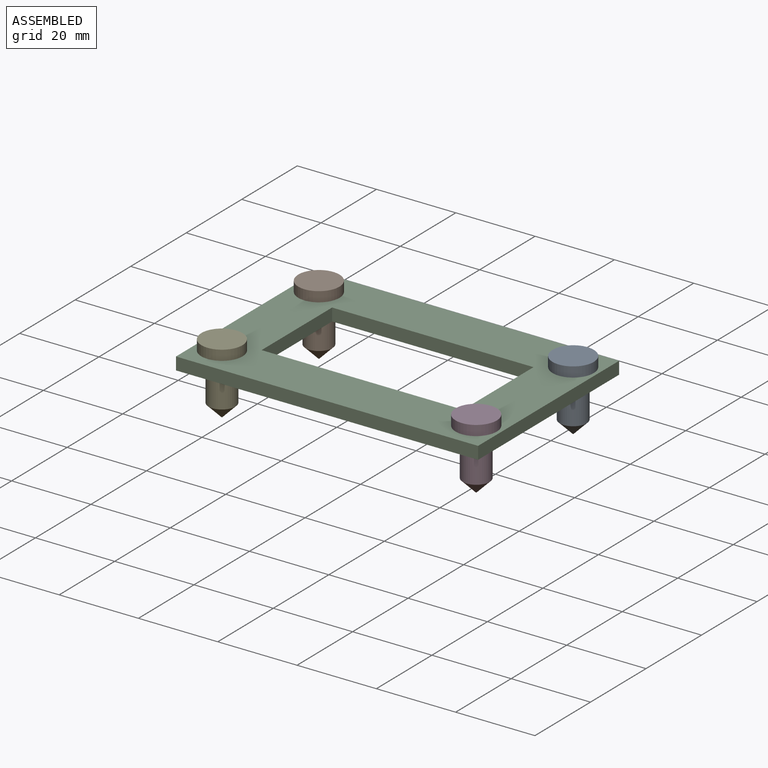
[diagram: assembled view]
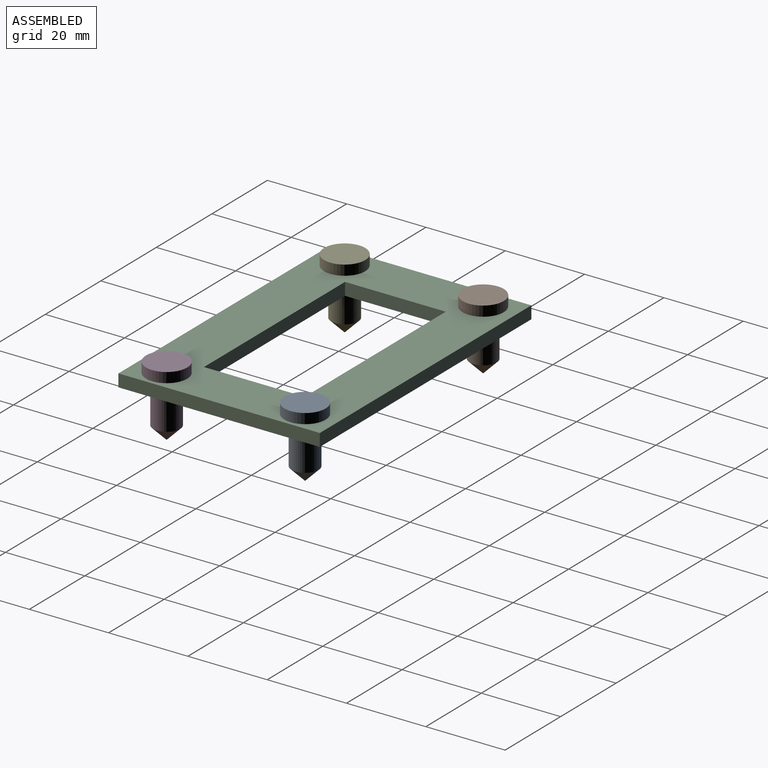
[diagram: assembled view, second angle]
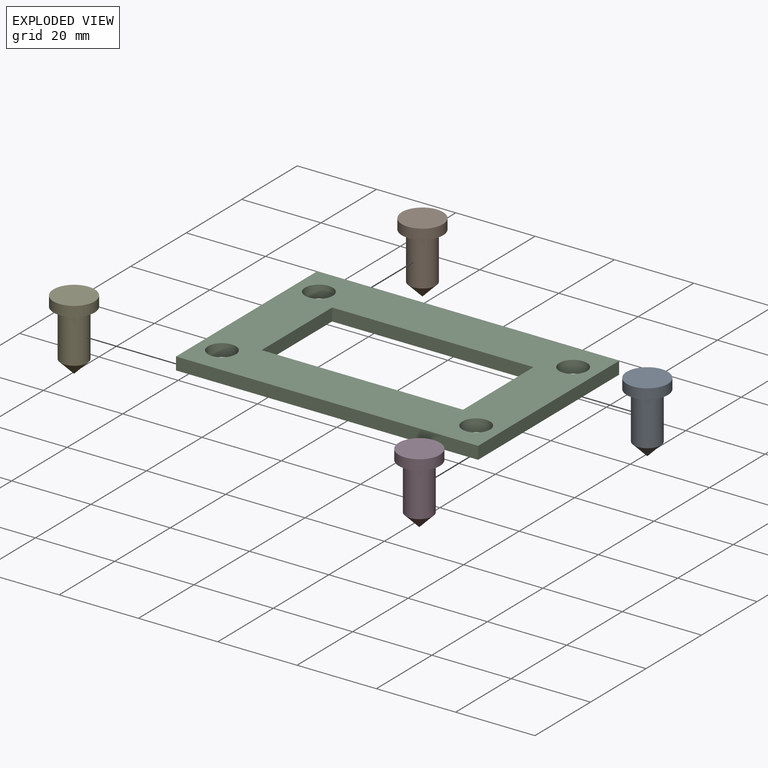
[diagram: exploded view]
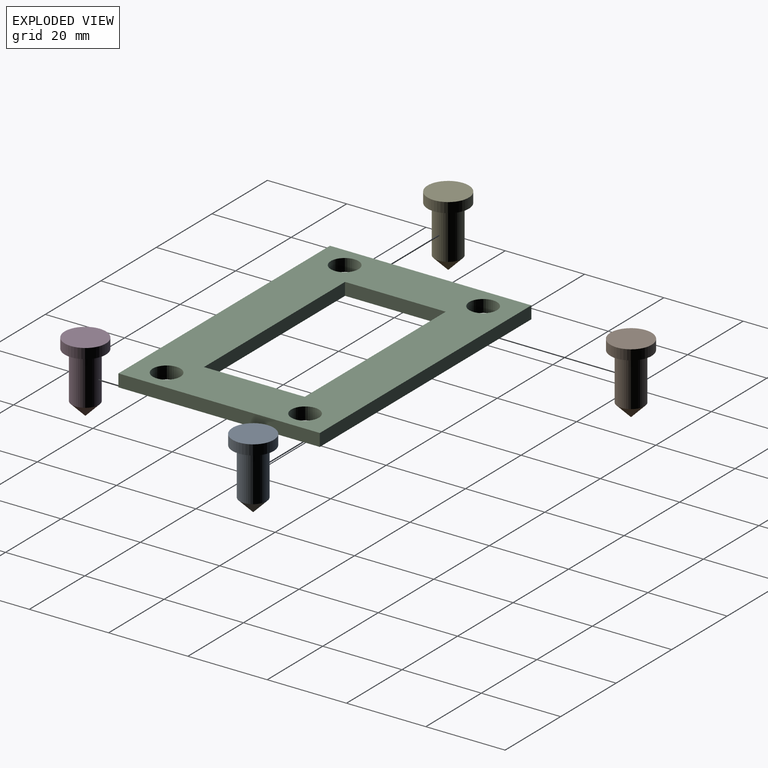
[diagram: exploded view, second angle]
ASSEMBLY  parts=5 mates=4
PART A: 6 faces, bbox 10.4x10.4x17.8 mm
  f0: cylinder r=3.4mm len=11.94mm, axis (0,0,1), area 254.7mm2, adj f4,f5
  f1: plane 0.19x0.19mm, normal (0,0,-1), area 0mm2, adj f5
  f2: cylinder r=5.19mm len=10.38mm, axis (0,0,-1), area 82.8mm2, adj f3,f4
  f3: plane 10.38x10.38mm, normal (0,0,1), area 84.6mm2, adj f2
  f4: plane 10.38x10.38mm, normal (0,0,-1), area 48.3mm2, adj f0,f2
  f5: cone r=3.4mm half-angle=45deg, axis (0,0,1), area 51.2mm2, adj f0,f1
PART B: same geometry as A
PART C: 14 faces, bbox 76.2x50.8x3.2 mm
  f0: plane 76.2x50.8mm, normal (0,0,1), area 2427.4mm2, adj f2,f3,f4,f5,f6,f7,f8,f9
  f1: plane 76.2x50.8mm, normal (0,0,-1), area 2427.4mm2, adj f2,f3,f4,f5,f6,f7,f8,f9
  f2: plane 50.8x3.18mm, normal (-1,0,0), area 161.3mm2, adj f0,f1,f3,f9
  f3: plane 76.2x3.18mm, normal (0,-1,0), area 241.9mm2, adj f0,f1,f2,f4
  f4: plane 50.8x3.18mm, normal (1,0,0), area 161.3mm2, adj f0,f1,f3,f9
  f5: plane 25.4x3.18mm, normal (-1,0,0), area 80.6mm2, adj f0,f1,f6,f8
  f6: plane 50.8x3.18mm, normal (0,1,0), area 161.3mm2, adj f0,f1,f5,f7
  f7: plane 25.4x3.18mm, normal (1,0,0), area 80.6mm2, adj f0,f1,f6,f8
  f8: plane 50.8x3.18mm, normal (0,-1,0), area 161.3mm2, adj f0,f1,f5,f7
  f9: plane 76.2x3.18mm, normal (0,1,0), area 241.9mm2, adj f0,f1,f2,f4
  f10: cylinder r=3.49mm len=6.99mm, axis (0,0,1), area 69.7mm2, adj f0,f1
  f11: cylinder r=3.49mm len=6.99mm, axis (0,0,1), area 69.7mm2, adj f0,f1
  f12: cylinder r=3.49mm len=6.99mm, axis (0,0,1), area 69.7mm2, adj f0,f1
  f13: cylinder r=3.49mm len=6.99mm, axis (0,0,1), area 69.7mm2, adj f0,f1
PART D: same geometry as A
PART E: same geometry as A
PLACE A t=(64.13,-12.57,33.02)mm
PLACE B t=(0,-12.57,33.02)mm
PLACE C t=(64.13,-12.57,33.02)mm
PLACE D t=(64.13,-47.5,33.02)mm
PLACE E t=(0,-47.5,33.02)mm
MATE fastened C.f13 <-> E.f0  axis (0,0,1) through (32.07,-30.04,36.2)mm
MATE fastened D.f0 <-> C.f11  axis (0,0,-1) through (96.2,-30.04,36.2)mm
MATE fastened B.f0 <-> C.f10  axis (0,0,-1) through (32.07,4.89,36.2)mm
MATE fastened A.f0 <-> C.f12  axis (0,0,-1) through (96.2,4.89,36.2)mm
